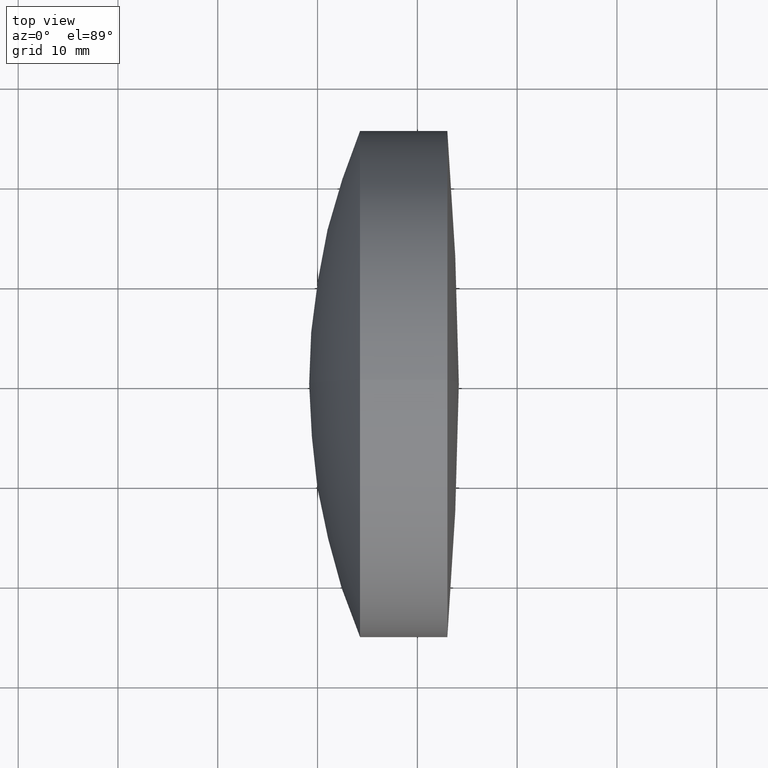
[diagram: clean part render]
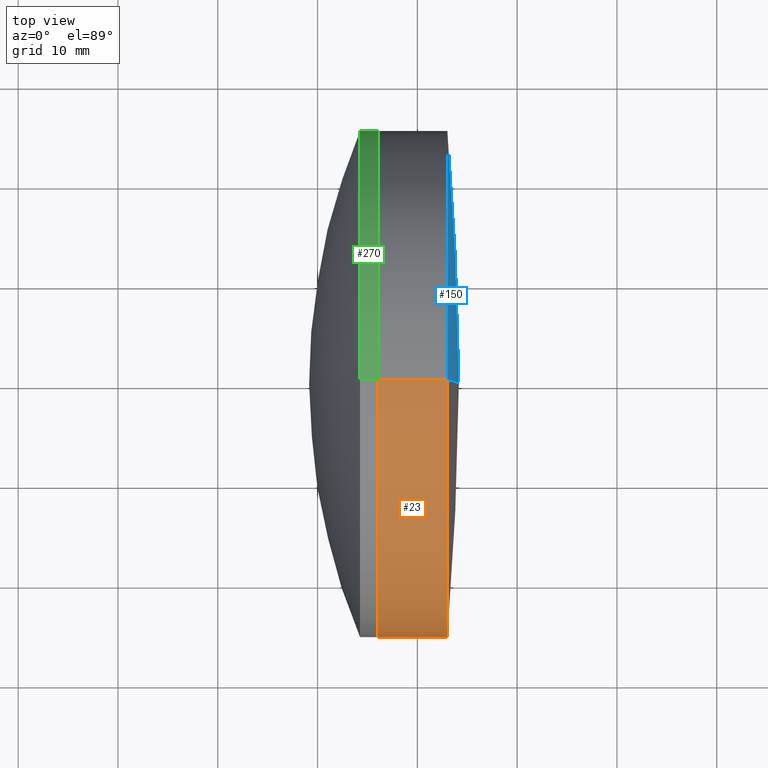
[diagram: same view with three faces highlighted in distinct colors, each labeled with its STEP entity id]
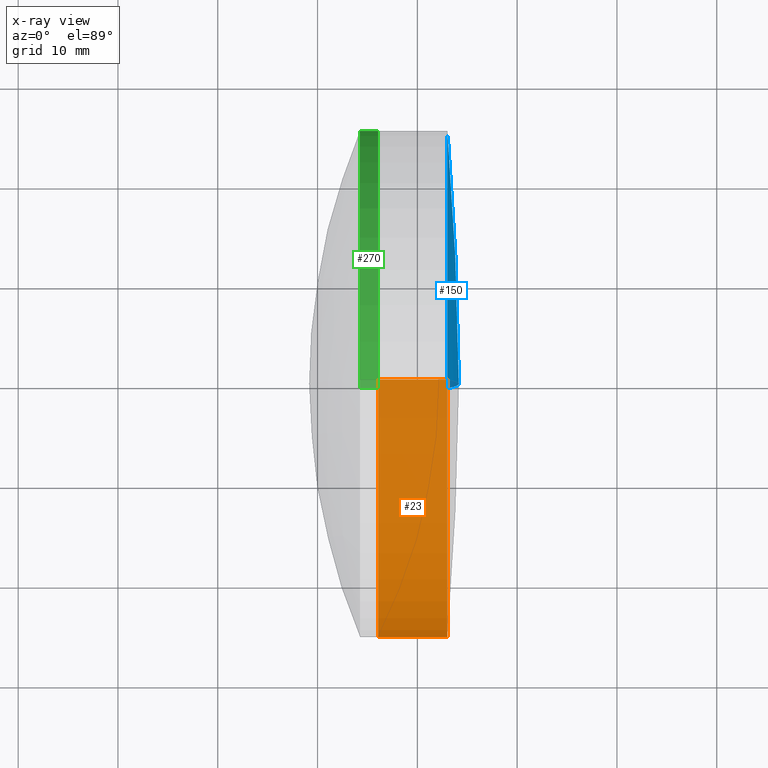
[diagram: x-ray of the same camera — body ghosted, the three highlighted faces saturated]
A machine part, top view with three faces highlighted in distinct colors.
The next image is the same camera in x-ray (body ghosted, the three faces saturated) — at least one of them is partly hidden behind the body in this view.
Their STEP definitions:

[orange] entity #23 — the highlighted cylindrical surface (partial cylindrical patch) has radius 25.4 mm, axis along (-1, -0, -0).
#7 = VERTEX_POINT ( 'NONE', #103 ) ;
#13 = CARTESIAN_POINT ( 'NONE',  ( 536.0667524492886300, 3.110602869834283200E-015, -25.40000000000006300 ) ) ;
#23 = ADVANCED_FACE ( 'NONE', ( #311 ), #32, .T. ) ;
#32 = CYLINDRICAL_SURFACE ( 'NONE', #47, 25.40000000000005500 ) ;
#36 = AXIS2_PLACEMENT_3D ( 'NONE', #118, #288, #265 ) ;
#47 = AXIS2_PLACEMENT_3D ( 'NONE', #160, #327, #215 ) ;
#52 = EDGE_LOOP ( 'NONE', ( #335, #223, #282, #108 ) ) ;
#85 = VECTOR ( 'NONE', #247, 1000.000000000000000 ) ;
#88 = LINE ( 'NONE', #143, #259 ) ;
#103 = CARTESIAN_POINT ( 'NONE',  ( 543.0064638771954200, 3.110602869834284000E-015, -25.40000000000005500 ) ) ;
#105 = VERTEX_POINT ( 'NONE', #199 ) ;
#108 = ORIENTED_EDGE ( 'NONE', *, *, #216, .F. ) ;
#111 = DIRECTION ( 'NONE',  ( 0.0000000000000000000, 0.0000000000000000000, 1.000000000000000000 ) ) ;
#118 = CARTESIAN_POINT ( 'NONE',  ( 543.0064638771954200, 0.0000000000000000000, 0.0000000000000000000 ) ) ;
#125 = VERTEX_POINT ( 'NONE', #13 ) ;
#143 = CARTESIAN_POINT ( 'NONE',  ( -0.5519199926577972300, 0.0000000000000000000, 25.40000000000005500 ) ) ;
#160 = CARTESIAN_POINT ( 'NONE',  ( -0.5519199926577972300, 0.0000000000000000000, 0.0000000000000000000 ) ) ;
#199 = CARTESIAN_POINT ( 'NONE',  ( 543.0064638771954200, 0.0000000000000000000, 25.40000000000005500 ) ) ;
#211 = EDGE_CURVE ( 'NONE', #105, #312, #88, .T. ) ;
#215 = DIRECTION ( 'NONE',  ( 0.0000000000000000000, 0.0000000000000000000, 1.000000000000000000 ) ) ;
#216 = EDGE_CURVE ( 'NONE', #125, #312, #235, .T. ) ;
#218 = CARTESIAN_POINT ( 'NONE',  ( -0.5519199926577972300, 3.110602869834284000E-015, -25.40000000000005500 ) ) ;
#223 = ORIENTED_EDGE ( 'NONE', *, *, #261, .T. ) ;
#229 = CARTESIAN_POINT ( 'NONE',  ( 536.0667524492886300, 0.0000000000000000000, 0.0000000000000000000 ) ) ;
#235 = CIRCLE ( 'NONE', #294, 25.40000000000005200 ) ;
#245 = CIRCLE ( 'NONE', #36, 25.40000000000005500 ) ;
#247 = DIRECTION ( 'NONE',  ( -1.000000000000000000, -0.0000000000000000000, -0.0000000000000000000 ) ) ;
#248 = EDGE_CURVE ( 'NONE', #7, #125, #346, .T. ) ;
#251 = DIRECTION ( 'NONE',  ( -1.000000000000000000, -0.0000000000000000000, -0.0000000000000000000 ) ) ;
#259 = VECTOR ( 'NONE', #309, 1000.000000000000000 ) ;
#261 = EDGE_CURVE ( 'NONE', #7, #105, #245, .T. ) ;
#265 = DIRECTION ( 'NONE',  ( 0.0000000000000000000, 0.0000000000000000000, 1.000000000000000000 ) ) ;
#269 = CARTESIAN_POINT ( 'NONE',  ( 536.0667524492886300, 0.0000000000000000000, 25.40000000000004800 ) ) ;
#282 = ORIENTED_EDGE ( 'NONE', *, *, #211, .T. ) ;
#288 = DIRECTION ( 'NONE',  ( -1.000000000000000000, -0.0000000000000000000, -0.0000000000000000000 ) ) ;
#294 = AXIS2_PLACEMENT_3D ( 'NONE', #229, #251, #111 ) ;
#309 = DIRECTION ( 'NONE',  ( -1.000000000000000000, -0.0000000000000000000, -0.0000000000000000000 ) ) ;
#311 = FACE_OUTER_BOUND ( 'NONE', #52, .T. ) ;
#312 = VERTEX_POINT ( 'NONE', #269 ) ;
#327 = DIRECTION ( 'NONE',  ( -1.000000000000000000, -0.0000000000000000000, -0.0000000000000000000 ) ) ;
#335 = ORIENTED_EDGE ( 'NONE', *, *, #248, .F. ) ;
#346 = LINE ( 'NONE', #218, #85 ) ;

[blue] entity #150 — the highlighted spherical surface has radius 280.6 mm.
#7 = VERTEX_POINT ( 'NONE', #103 ) ;
#10 = DIRECTION ( 'NONE',  ( 0.0000000000000000000, 1.000000000000000000, 0.0000000000000000000 ) ) ;
#37 = DIRECTION ( 'NONE',  ( 0.0000000000000000000, -1.224646799147353200E-016, 1.000000000000000000 ) ) ;
#40 = CIRCLE ( 'NONE', #287, 25.40000000000005500 ) ;
#57 = AXIS2_PLACEMENT_3D ( 'NONE', #334, #168, #37 ) ;
#97 = CIRCLE ( 'NONE', #253, 280.5999999999999700 ) ;
#99 = EDGE_CURVE ( 'NONE', #233, #105, #97, .T. ) ;
#103 = CARTESIAN_POINT ( 'NONE',  ( 543.0064638771954200, 3.110602869834284000E-015, -25.40000000000005500 ) ) ;
#105 = VERTEX_POINT ( 'NONE', #199 ) ;
#106 = FACE_OUTER_BOUND ( 'NONE', #197, .T. ) ;
#110 = DIRECTION ( 'NONE',  ( 0.0000000000000000000, -1.000000000000000000, 0.0000000000000000000 ) ) ;
#114 = EDGE_CURVE ( 'NONE', #105, #7, #40, .T. ) ;
#140 = ORIENTED_EDGE ( 'NONE', *, *, #114, .F. ) ;
#145 = EDGE_CURVE ( 'NONE', #233, #7, #250, .T. ) ;
#146 = ORIENTED_EDGE ( 'NONE', *, *, #145, .T. ) ;
#150 = ADVANCED_FACE ( 'NONE', ( #106 ), #152, .T. ) ;
#152 = SPHERICAL_SURFACE ( 'NONE', #277, 280.5999999999999700 ) ;
#168 = DIRECTION ( 'NONE',  ( -0.0000000000000000000, 1.000000000000000000, 1.224646799147353200E-016 ) ) ;
#197 = EDGE_LOOP ( 'NONE', ( #266, #146, #140 ) ) ;
#199 = CARTESIAN_POINT ( 'NONE',  ( 543.0064638771954200, 0.0000000000000000000, 25.40000000000005500 ) ) ;
#225 = CARTESIAN_POINT ( 'NONE',  ( 263.5584365089565600, 0.0000000000000000000, 0.0000000000000000000 ) ) ;
#227 = DIRECTION ( 'NONE',  ( 0.0000000000000000000, 0.0000000000000000000, 1.000000000000000000 ) ) ;
#233 = VERTEX_POINT ( 'NONE', #258 ) ;
#250 = CIRCLE ( 'NONE', #57, 280.5999999999999700 ) ;
#253 = AXIS2_PLACEMENT_3D ( 'NONE', #338, #110, #307 ) ;
#254 = DIRECTION ( 'NONE',  ( 0.0000000000000000000, 0.0000000000000000000, 1.000000000000000000 ) ) ;
#257 = CARTESIAN_POINT ( 'NONE',  ( 543.0064638771954200, 0.0000000000000000000, 0.0000000000000000000 ) ) ;
#258 = CARTESIAN_POINT ( 'NONE',  ( 544.1584365089564700, 0.0000000000000000000, 1.718179459203736200E-014 ) ) ;
#266 = ORIENTED_EDGE ( 'NONE', *, *, #99, .F. ) ;
#277 = AXIS2_PLACEMENT_3D ( 'NONE', #225, #10, #254 ) ;
#287 = AXIS2_PLACEMENT_3D ( 'NONE', #257, #336, #227 ) ;
#307 = DIRECTION ( 'NONE',  ( 0.0000000000000000000, 0.0000000000000000000, -1.000000000000000000 ) ) ;
#334 = CARTESIAN_POINT ( 'NONE',  ( 263.5584365089565600, 0.0000000000000000000, 0.0000000000000000000 ) ) ;
#336 = DIRECTION ( 'NONE',  ( -1.000000000000000000, -0.0000000000000000000, -0.0000000000000000000 ) ) ;
#338 = CARTESIAN_POINT ( 'NONE',  ( 263.5584365089565600, 0.0000000000000000000, 0.0000000000000000000 ) ) ;

[green] entity #270 — the highlighted cylindrical surface (partial cylindrical patch) has radius 25.4 mm, axis along (-1, -0, -0).
#8 = EDGE_LOOP ( 'NONE', ( #293, #50, #82, #208 ) ) ;
#26 = VERTEX_POINT ( 'NONE', #129 ) ;
#28 = CARTESIAN_POINT ( 'NONE',  ( 536.0667524492886300, 3.110602869834276100E-015, -25.39999999999998800 ) ) ;
#41 = CARTESIAN_POINT ( 'NONE',  ( 124.5233095260452400, 0.0000000000000000000, 25.39999999999998800 ) ) ;
#50 = ORIENTED_EDGE ( 'NONE', *, *, #201, .T. ) ;
#56 = AXIS2_PLACEMENT_3D ( 'NONE', #343, #205, #345 ) ;
#60 = VERTEX_POINT ( 'NONE', #28 ) ;
#62 = EDGE_CURVE ( 'NONE', #26, #60, #123, .T. ) ;
#82 = ORIENTED_EDGE ( 'NONE', *, *, #194, .F. ) ;
#87 = CARTESIAN_POINT ( 'NONE',  ( 534.2585188813353600, 0.0000000000000000000, 0.0000000000000000000 ) ) ;
#98 = CYLINDRICAL_SURFACE ( 'NONE', #56, 25.39999999999998800 ) ;
#112 = DIRECTION ( 'NONE',  ( -1.000000000000000000, -0.0000000000000000000, -0.0000000000000000000 ) ) ;
#123 = CIRCLE ( 'NONE', #156, 25.39999999999998800 ) ;
#126 = DIRECTION ( 'NONE',  ( -1.000000000000000000, -0.0000000000000000000, -0.0000000000000000000 ) ) ;
#129 = CARTESIAN_POINT ( 'NONE',  ( 536.0667524492886300, 0.0000000000000000000, 25.39999999999998800 ) ) ;
#156 = AXIS2_PLACEMENT_3D ( 'NONE', #324, #126, #296 ) ;
#159 = FACE_OUTER_BOUND ( 'NONE', #8, .T. ) ;
#163 = CIRCLE ( 'NONE', #263, 25.39999999999998800 ) ;
#173 = DIRECTION ( 'NONE',  ( -1.000000000000000000, -0.0000000000000000000, -0.0000000000000000000 ) ) ;
#194 = EDGE_CURVE ( 'NONE', #295, #212, #163, .T. ) ;
#201 = EDGE_CURVE ( 'NONE', #60, #212, #232, .T. ) ;
#205 = DIRECTION ( 'NONE',  ( -1.000000000000000000, -0.0000000000000000000, -0.0000000000000000000 ) ) ;
#208 = ORIENTED_EDGE ( 'NONE', *, *, #219, .F. ) ;
#212 = VERTEX_POINT ( 'NONE', #339 ) ;
#219 = EDGE_CURVE ( 'NONE', #26, #295, #321, .T. ) ;
#230 = CARTESIAN_POINT ( 'NONE',  ( 124.5233095260452400, 3.110602869834276100E-015, -25.39999999999998800 ) ) ;
#232 = LINE ( 'NONE', #230, #310 ) ;
#260 = DIRECTION ( 'NONE',  ( 0.0000000000000000000, 0.0000000000000000000, 1.000000000000000000 ) ) ;
#263 = AXIS2_PLACEMENT_3D ( 'NONE', #87, #112, #260 ) ;
#264 = CARTESIAN_POINT ( 'NONE',  ( 534.2585188813353600, 0.0000000000000000000, 25.39999999999999100 ) ) ;
#270 = ADVANCED_FACE ( 'NONE', ( #159 ), #98, .T. ) ;
#284 = VECTOR ( 'NONE', #173, 1000.000000000000000 ) ;
#293 = ORIENTED_EDGE ( 'NONE', *, *, #62, .T. ) ;
#295 = VERTEX_POINT ( 'NONE', #264 ) ;
#296 = DIRECTION ( 'NONE',  ( 0.0000000000000000000, 0.0000000000000000000, 1.000000000000000000 ) ) ;
#310 = VECTOR ( 'NONE', #333, 1000.000000000000000 ) ;
#321 = LINE ( 'NONE', #41, #284 ) ;
#324 = CARTESIAN_POINT ( 'NONE',  ( 536.0667524492886300, 0.0000000000000000000, 0.0000000000000000000 ) ) ;
#333 = DIRECTION ( 'NONE',  ( -1.000000000000000000, -0.0000000000000000000, -0.0000000000000000000 ) ) ;
#339 = CARTESIAN_POINT ( 'NONE',  ( 534.2585188813353600, 3.110602869834276100E-015, -25.40000000000000200 ) ) ;
#343 = CARTESIAN_POINT ( 'NONE',  ( 124.5233095260452400, 0.0000000000000000000, 0.0000000000000000000 ) ) ;
#345 = DIRECTION ( 'NONE',  ( 0.0000000000000000000, 0.0000000000000000000, 1.000000000000000000 ) ) ;